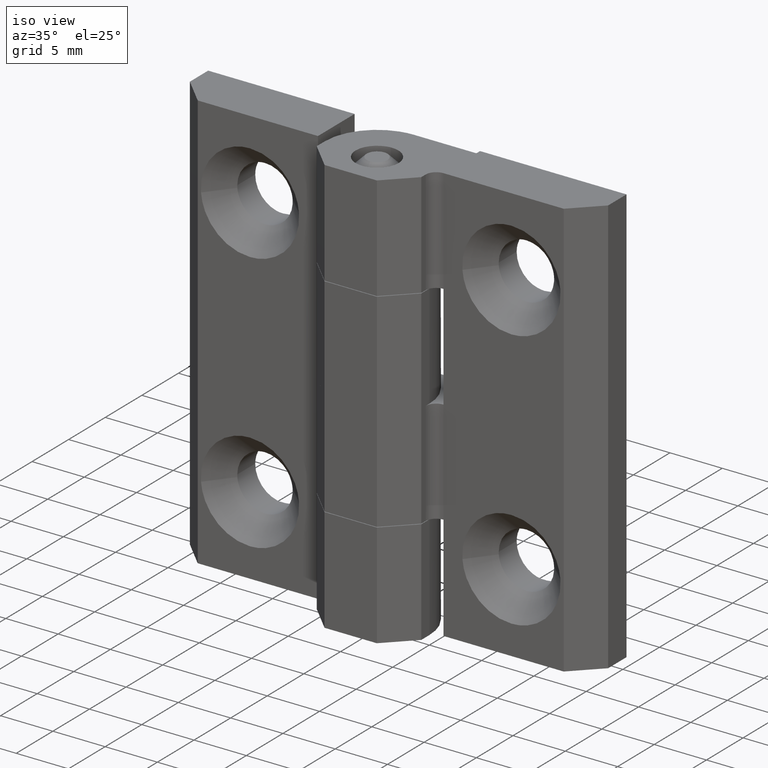
[diagram: clean part render]
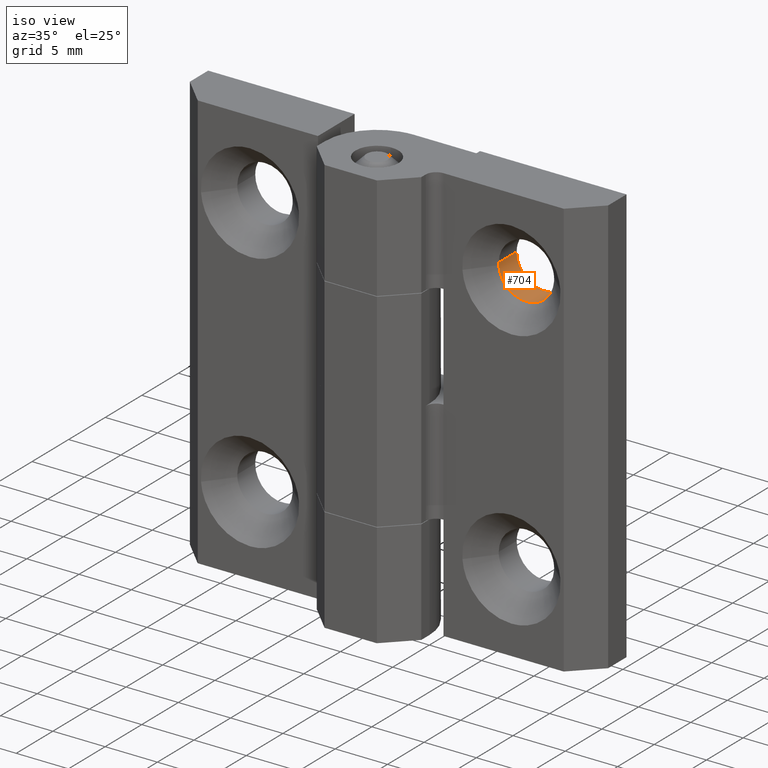
[diagram: same view with one face highlighted and labeled with its STEP entity id]
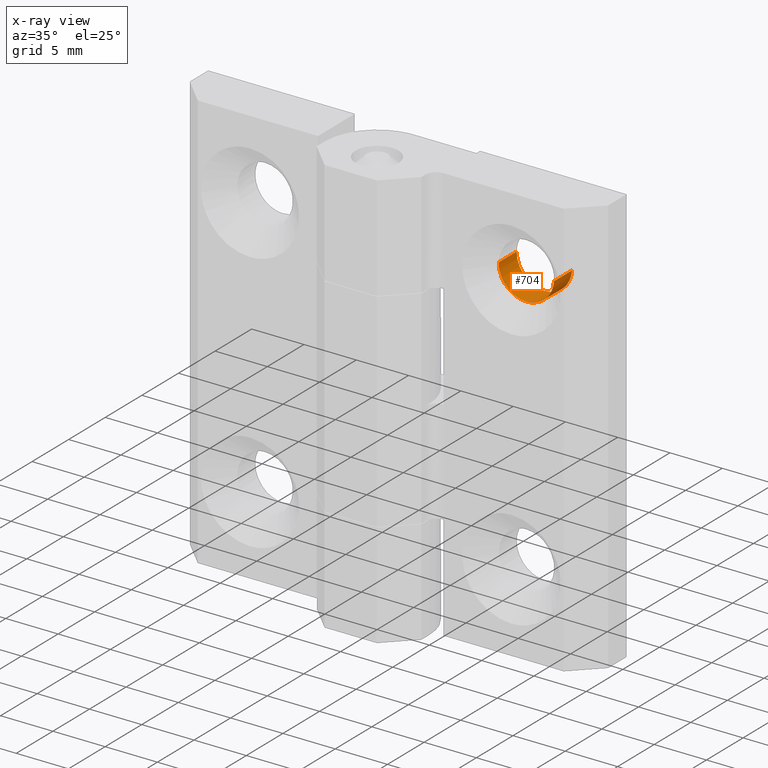
[diagram: x-ray of the same camera — body ghosted, the highlighted face saturated]
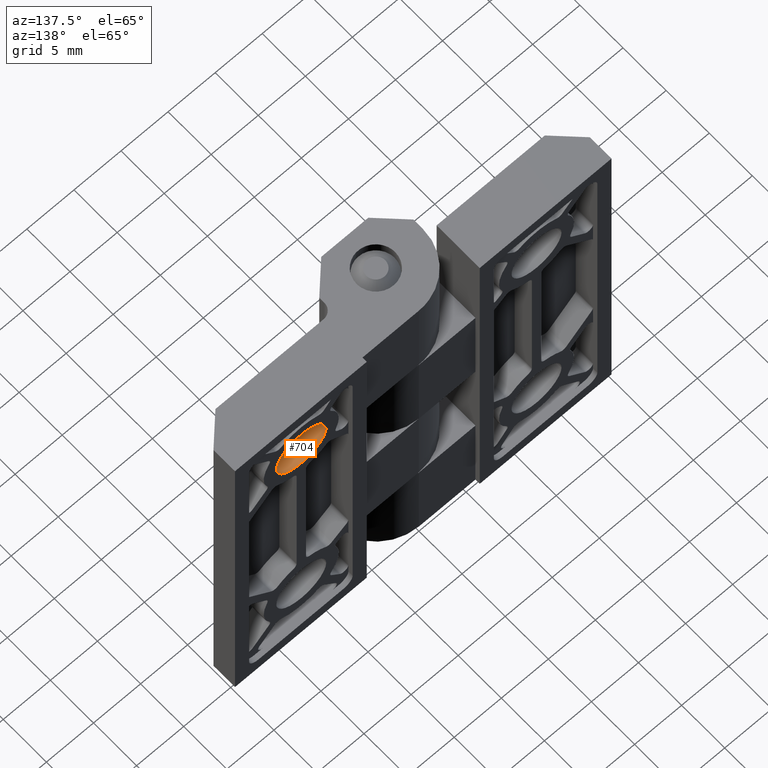
[diagram: same view with one face highlighted and labeled with its STEP entity id]
A machine part, iso view. The second image highlights one B-rep face of the part: STEP entity #704.
The next image is the same camera in x-ray: the body ghosted, the highlighted face saturated — about 0% of this face is hidden behind the body in this view.
A second angle (auxiliary view) of the same face is appended — the face is thin or edge-on in the first view.
In plain terms, the highlighted face is a freeform B-spline surface patch.
Its self-contained STEP definition (entity closure, byte-faithful):
#591=CARTESIAN_POINT('',(15.144240412759892,2.488750117616191,32.325360216487525));
#592=CARTESIAN_POINT('',(14.979317274688970,2.488750117616191,29.828263247448955));
#593=CARTESIAN_POINT('',(12.476875268363891,2.488750117616191,29.850101727992190));
#594=CARTESIAN_POINT('',(9.826975452688929,2.488750117616192,29.873227053342347));
#595=CARTESIAN_POINT('',(9.850100778039080,2.488750117616191,32.523126869017297));
#596=CARTESIAN_POINT('',(15.144240412759892,5.062781514826987,32.325360216487525));
#597=CARTESIAN_POINT('',(14.979317274688970,5.062781514826987,29.828263247448955));
#598=CARTESIAN_POINT('',(12.476875268363891,5.062781514826988,29.850101727992190));
#599=CARTESIAN_POINT('',(9.826975452688929,5.062781514826988,29.873227053342347));
#600=CARTESIAN_POINT('',(9.850100778039080,5.062781514826988,32.523126869017297));
#608=(BOUNDED_SURFACE()B_SPLINE_SURFACE(2,1,((#591,#596),(#592,#597),(#593,#598),(#594,#599),(#595,#600)),.UNSPECIFIED.,.F.,.F.,.U.)B_SPLINE_SURFACE_WITH_KNOTS((3,2,3),(2,2),(0.0,4.215038355261894,8.605703308659699),(0.0,2.574031397210798),.UNSPECIFIED.)GEOMETRIC_REPRESENTATION_ITEM()RATIONAL_B_SPLINE_SURFACE(((0.977505800795127,0.977505800795127),(0.718822509939086,0.718822509939086),(1.0,1.0),(0.707106781186548,0.707106781186548),(1.0,1.0)))REPRESENTATION_ITEM('')SURFACE());
#609=CARTESIAN_POINT('',(15.144240412759370,2.550000121119125,32.325360216479602));
#610=VERTEX_POINT('',#609);
#611=CARTESIAN_POINT('',(12.500000593714040,2.550000121119125,29.850000824084852));
#612=VERTEX_POINT('',#611);
#613=CARTESIAN_POINT('',(15.144240412759375,2.550000121119126,32.325360216479595));
#614=CARTESIAN_POINT('',(14.980752953543295,2.550000121119125,29.850000824084852));
#615=CARTESIAN_POINT('',(12.500000593714040,2.550000121119125,29.850000824084852));
#623=(BOUNDED_CURVE()B_SPLINE_CURVE(2,(#613,#614,#615),.UNSPECIFIED.,.F.,.U.)B_SPLINE_CURVE_WITH_KNOTS((3,3),(0.261505472927801,0.500000000000000),.UNSPECIFIED.)CURVE()GEOMETRIC_REPRESENTATION_ITEM()RATIONAL_B_SPLINE_CURVE((0.974281704180209,0.720586281185726,1.0))REPRESENTATION_ITEM(''));
#624=EDGE_CURVE('',#610,#612,#623,.T.);
#625=ORIENTED_EDGE('',*,*,#624,.F.);
#626=CARTESIAN_POINT('',(15.144240412754490,5.000000261236480,32.325360216405727));
#627=VERTEX_POINT('',#626);
#628=CARTESIAN_POINT('',(15.144240412759370,2.550000121119125,32.325360216479602));
#629=CARTESIAN_POINT('',(15.144240412754490,5.000000261236480,32.325360216405727));
#630=QUASI_UNIFORM_CURVE('',1,(#628,#629),.UNSPECIFIED.,.F.,.U.);
#631=EDGE_CURVE('',#610,#627,#630,.T.);
#632=ORIENTED_EDGE('',*,*,#631,.T.);
#633=CARTESIAN_POINT('',(12.500000593714040,5.000000261236480,29.850000824084852));
#634=VERTEX_POINT('',#633);
#635=CARTESIAN_POINT('',(12.500000593714040,5.000000261236480,29.850000824084852));
#636=CARTESIAN_POINT('',(14.980752953404391,5.000000261236480,29.850000824084855));
#637=CARTESIAN_POINT('',(15.144240412754492,5.000000261236480,32.325360216405734));
#645=(BOUNDED_CURVE()B_SPLINE_CURVE(2,(#635,#636,#637),.UNSPECIFIED.,.F.,.U.)B_SPLINE_CURVE_WITH_KNOTS((3,3),(0.500000000000000,0.738494527062576),.UNSPECIFIED.)CURVE()GEOMETRIC_REPRESENTATION_ITEM()RATIONAL_B_SPLINE_CURVE((1.0,0.720586281197000,0.974281704159737))REPRESENTATION_ITEM(''));
#646=EDGE_CURVE('',#634,#627,#645,.T.);
#647=ORIENTED_EDGE('',*,*,#646,.F.);
#648=CARTESIAN_POINT('',(9.850100778039902,5.000000261236480,32.523126869111593));
#649=VERTEX_POINT('',#648);
#650=CARTESIAN_POINT('',(9.850100778039902,5.000000261236480,32.523126869111593));
#651=CARTESIAN_POINT('',(9.849999874131735,5.000000261236480,32.511564426576093));
#652=CARTESIAN_POINT('',(9.849999874131735,5.000000261236480,32.500001543667153));
#653=CARTESIAN_POINT('',(9.849999874131735,5.000000261236480,29.850000824084848));
#654=CARTESIAN_POINT('',(12.500000593714040,5.000000261236480,29.850000824084852));
#662=(BOUNDED_CURVE()B_SPLINE_CURVE(2,(#650,#651,#652,#653,#654),.UNSPECIFIED.,.F.,.U.)B_SPLINE_CURVE_WITH_KNOTS((3,2,3),(0.248460105652479,0.250000000000000,0.500000000000000),.UNSPECIFIED.)CURVE()GEOMETRIC_REPRESENTATION_ITEM()RATIONAL_B_SPLINE_CURVE((0.996414028071399,0.998195901551688,1.0,0.707106781186548,1.0))REPRESENTATION_ITEM(''));
#663=EDGE_CURVE('',#649,#634,#662,.T.);
#664=ORIENTED_EDGE('',*,*,#663,.F.);
#665=CARTESIAN_POINT('',(9.850100778040517,2.550000121119125,32.523126869181873));
#666=VERTEX_POINT('',#665);
#667=CARTESIAN_POINT('',(9.850100778040517,2.550000121119125,32.523126869181873));
#668=CARTESIAN_POINT('',(9.850100778039902,5.000000261236480,32.523126869111593));
#669=QUASI_UNIFORM_CURVE('',1,(#667,#668),.UNSPECIFIED.,.F.,.U.);
#670=EDGE_CURVE('',#666,#649,#669,.T.);
#671=ORIENTED_EDGE('',*,*,#670,.F.);
#672=CARTESIAN_POINT('',(9.858168941948701,2.550000121097678,32.292084883364922));
#673=VERTEX_POINT('',#672);
#674=CARTESIAN_POINT('',(9.858168941948701,2.550000121097678,32.292084883364915));
#675=CARTESIAN_POINT('',(9.849999874131735,2.550000121119125,32.395882731659611));
#676=CARTESIAN_POINT('',(9.849999874131735,2.550000121119125,32.500001543667153));
#677=CARTESIAN_POINT('',(9.849999874131735,2.550000121119126,32.511564426646373));
#678=CARTESIAN_POINT('',(9.850100778040517,2.550000121119126,32.523126869181873));
#686=(BOUNDED_CURVE()B_SPLINE_CURVE(2,(#674,#675,#676,#677,#678),.UNSPECIFIED.,.F.,.U.)B_SPLINE_CURVE_WITH_KNOTS((3,2,3),(0.736331300611485,0.750000000000000,0.751539894356865),.UNSPECIFIED.)CURVE()GEOMETRIC_REPRESENTATION_ITEM()RATIONAL_B_SPLINE_CURVE((0.969723356127403,0.983986122556418,1.0,0.998195901540741,0.996414028049775))REPRESENTATION_ITEM(''));
#687=EDGE_CURVE('',#673,#666,#686,.T.);
#688=ORIENTED_EDGE('',*,*,#687,.F.);
#689=CARTESIAN_POINT('',(12.500000593714040,2.550000121119125,29.850000824084852));
#690=CARTESIAN_POINT('',(10.050365125949801,2.550000121119126,29.850000824084848));
#691=CARTESIAN_POINT('',(9.858168941948701,2.550000121097678,32.292084883364915));
#699=(BOUNDED_CURVE()B_SPLINE_CURVE(2,(#689,#690,#691),.UNSPECIFIED.,.F.,.U.)B_SPLINE_CURVE_WITH_KNOTS((3,3),(0.500000000000000,0.736331300611485),.UNSPECIFIED.)CURVE()GEOMETRIC_REPRESENTATION_ITEM()RATIONAL_B_SPLINE_CURVE((1.0,0.723120658630130,0.969723356127403))REPRESENTATION_ITEM(''));
#700=EDGE_CURVE('',#612,#673,#699,.T.);
#701=ORIENTED_EDGE('',*,*,#700,.F.);
#702=EDGE_LOOP('',(#625,#632,#647,#664,#671,#688,#701));
#703=FACE_OUTER_BOUND('',#702,.T.);
#704=ADVANCED_FACE('',(#703),#608,.F.);